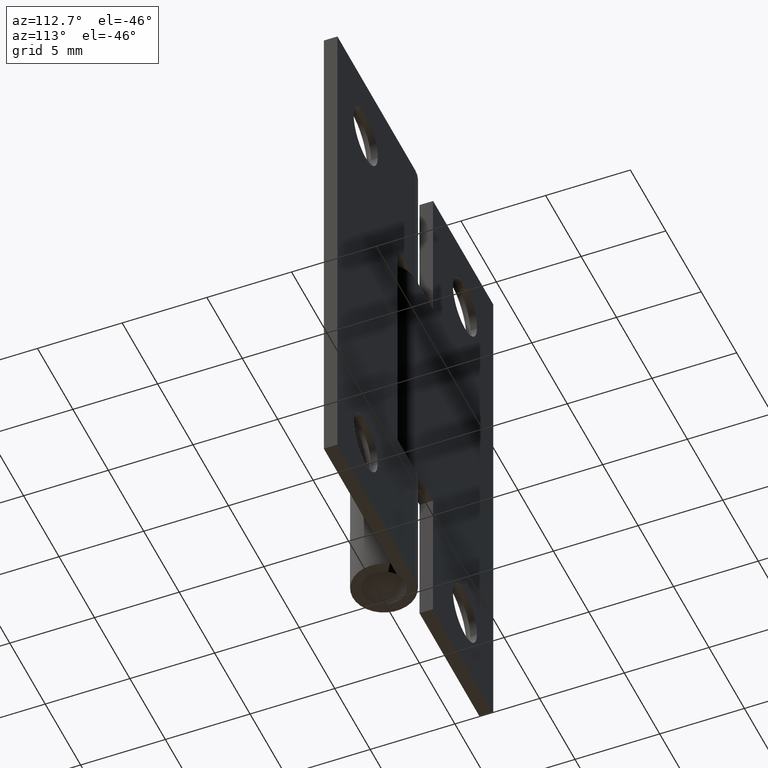
[diagram: clean part render]
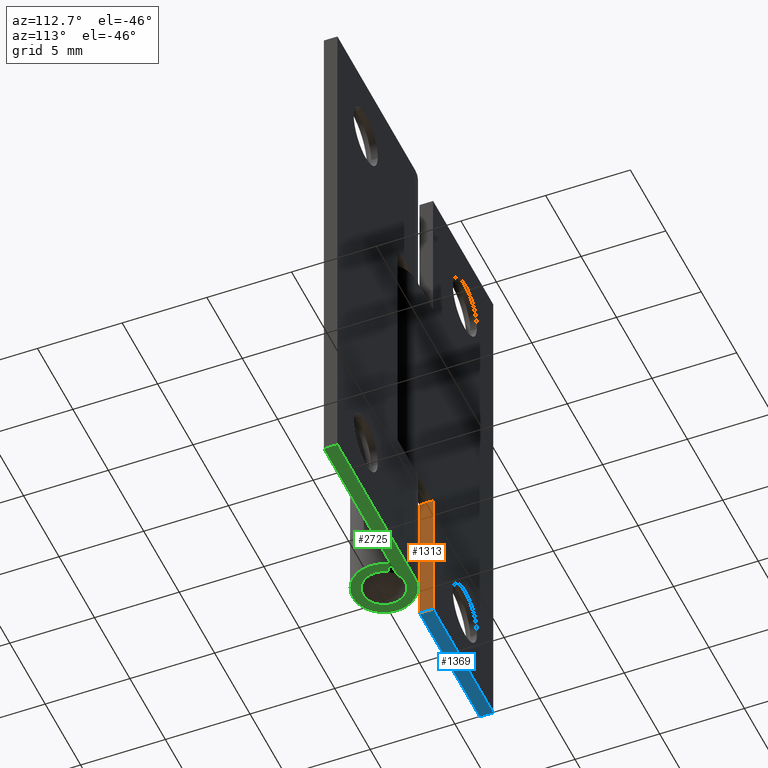
[diagram: same view with three faces highlighted in distinct colors, each labeled with its STEP entity id]
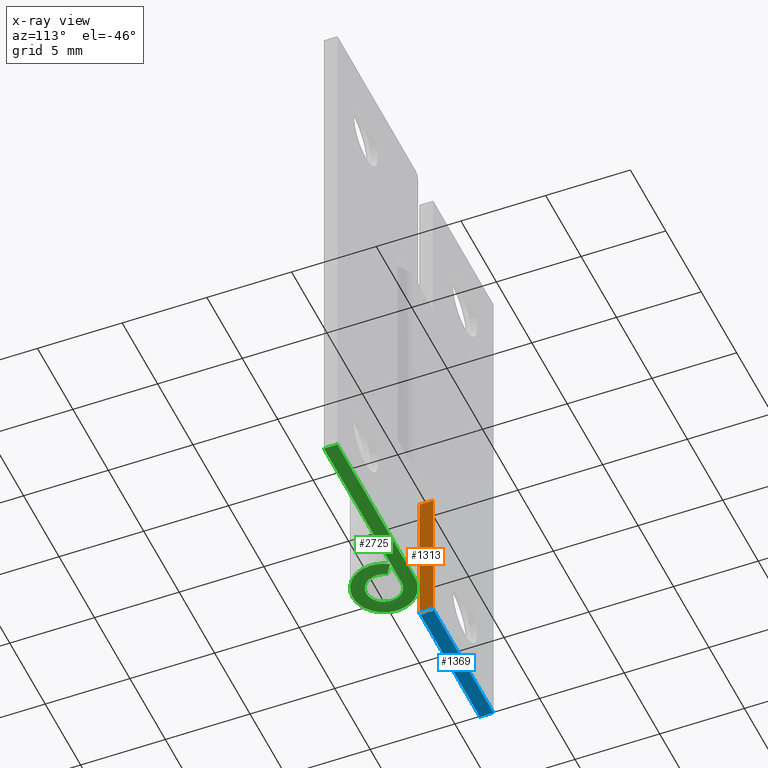
[diagram: x-ray of the same camera — body ghosted, the three highlighted faces saturated]
A machine part, auxiliary view with three faces highlighted in distinct colors.
The next image is the same camera in x-ray (body ghosted, the three faces saturated) — at least one of them is partly hidden behind the body in this view.
Their STEP definitions:

[orange] entity #1313 — the highlighted face is a freeform B-spline surface patch.
#1221=CARTESIAN_POINT('',(-2.500000000000070,1.049990999999806,8.500000000000000));
#1222=VERTEX_POINT('',#1221);
#1228=CARTESIAN_POINT('',(-2.500000000000070,1.849990999999940,8.500000000000000));
#1229=VERTEX_POINT('',#1228);
#1230=CARTESIAN_POINT('',(-2.500000000000070,1.049990999999806,8.500000000000000));
#1231=CARTESIAN_POINT('',(-2.500000000000070,1.849990999999940,8.500000000000000));
#1232=QUASI_UNIFORM_CURVE('',1,(#1230,#1231),.UNSPECIFIED.,.F.,.U.);
#1233=EDGE_CURVE('',#1222,#1229,#1232,.T.);
#1286=CARTESIAN_POINT('',(-2.499999999999960,1.010031001550354,8.924574983525353));
#1287=CARTESIAN_POINT('',(-2.499999999999960,1.010031001550354,-0.424575211513177));
#1288=CARTESIAN_POINT('',(-2.499999999999960,1.889951019907064,8.924574983525353));
#1289=CARTESIAN_POINT('',(-2.499999999999960,1.889951019907064,-0.424575211513177));
#1290=B_SPLINE_SURFACE_WITH_KNOTS('',1,1,((#1286,#1288),(#1287,#1289)),.UNSPECIFIED.,.F.,.F.,.U.,(2,2),(2,2),(0.0,9.349150195038531),(0.041708334948495,0.958291687403247),.UNSPECIFIED.);
#1291=CARTESIAN_POINT('',(-2.500000000000000,1.049990999999860,1.421085E-014));
#1292=VERTEX_POINT('',#1291);
#1293=CARTESIAN_POINT('',(-2.500000000000000,1.849990999999940,-5.684342E-014));
#1294=VERTEX_POINT('',#1293);
#1295=CARTESIAN_POINT('',(-2.500000000000000,1.049990999999860,1.421085E-014));
#1296=CARTESIAN_POINT('',(-2.500000000000000,1.849990999999940,-5.684342E-014));
#1297=QUASI_UNIFORM_CURVE('',1,(#1295,#1296),.UNSPECIFIED.,.F.,.U.);
#1298=EDGE_CURVE('',#1292,#1294,#1297,.T.);
#1299=ORIENTED_EDGE('',*,*,#1298,.T.);
#1300=CARTESIAN_POINT('',(-2.500000000000070,1.849990999999940,8.500000000000000));
#1301=CARTESIAN_POINT('',(-2.500000000000000,1.849990999999940,-5.684342E-014));
#1302=QUASI_UNIFORM_CURVE('',1,(#1300,#1301),.UNSPECIFIED.,.F.,.U.);
#1303=EDGE_CURVE('',#1229,#1294,#1302,.T.);
#1304=ORIENTED_EDGE('',*,*,#1303,.F.);
#1305=ORIENTED_EDGE('',*,*,#1233,.F.);
#1306=CARTESIAN_POINT('',(-2.500000000000000,1.049990999999860,1.421085E-014));
#1307=CARTESIAN_POINT('',(-2.500000000000070,1.049990999999806,8.500000000000000));
#1308=QUASI_UNIFORM_CURVE('',1,(#1306,#1307),.UNSPECIFIED.,.F.,.U.);
#1309=EDGE_CURVE('',#1292,#1222,#1308,.T.);
#1310=ORIENTED_EDGE('',*,*,#1309,.F.);
#1311=EDGE_LOOP('',(#1299,#1304,#1305,#1310));
#1312=FACE_OUTER_BOUND('',#1311,.T.);
#1313=ADVANCED_FACE('',(#1312),#1290,.T.);

[blue] entity #1369 — the highlighted face is a freeform B-spline surface patch.
#1291=CARTESIAN_POINT('',(-2.500000000000000,1.049990999999860,1.421085E-014));
#1292=VERTEX_POINT('',#1291);
#1293=CARTESIAN_POINT('',(-2.500000000000000,1.849990999999940,-5.684342E-014));
#1294=VERTEX_POINT('',#1293);
#1295=CARTESIAN_POINT('',(-2.500000000000000,1.049990999999860,1.421085E-014));
#1296=CARTESIAN_POINT('',(-2.500000000000000,1.849990999999940,-5.684342E-014));
#1297=QUASI_UNIFORM_CURVE('',1,(#1295,#1296),.UNSPECIFIED.,.F.,.U.);
#1298=EDGE_CURVE('',#1292,#1294,#1297,.T.);
#1319=CARTESIAN_POINT('',(-10.999999999999700,1.049990999999902,0.0));
#1320=VERTEX_POINT('',#1319);
#1321=CARTESIAN_POINT('',(-10.999999999999700,1.849990999999905,0.0));
#1322=VERTEX_POINT('',#1321);
#1323=CARTESIAN_POINT('',(-10.999999999999700,1.049990999999902,0.0));
#1324=CARTESIAN_POINT('',(-10.999999999999700,1.849990999999905,0.0));
#1325=QUASI_UNIFORM_CURVE('',1,(#1323,#1324),.UNSPECIFIED.,.F.,.U.);
#1326=EDGE_CURVE('',#1320,#1322,#1325,.T.);
#1350=CARTESIAN_POINT('',(-11.424574983525041,1.010031001550411,1.421085E-014));
#1351=CARTESIAN_POINT('',(-2.075424788486898,1.010031001550411,1.421085E-014));
#1352=CARTESIAN_POINT('',(-11.424574983525041,1.889951019907061,1.421085E-014));
#1353=CARTESIAN_POINT('',(-2.075424788486898,1.889951019907061,1.421085E-014));
#1354=B_SPLINE_SURFACE_WITH_KNOTS('',1,1,((#1350,#1352),(#1351,#1353)),.UNSPECIFIED.,.F.,.F.,.U.,(2,2),(2,2),(0.0,9.349150195038138),(0.041708334948495,0.958291687403247),.UNSPECIFIED.);
#1355=CARTESIAN_POINT('',(-10.999999999999700,1.849990999999905,0.0));
#1356=CARTESIAN_POINT('',(-2.500000000000000,1.849990999999940,-5.684342E-014));
#1357=QUASI_UNIFORM_CURVE('',1,(#1355,#1356),.UNSPECIFIED.,.F.,.U.);
#1358=EDGE_CURVE('',#1322,#1294,#1357,.T.);
#1359=ORIENTED_EDGE('',*,*,#1358,.T.);
#1360=ORIENTED_EDGE('',*,*,#1298,.F.);
#1361=CARTESIAN_POINT('',(-2.500000000000000,1.049990999999860,1.421085E-014));
#1362=CARTESIAN_POINT('',(-10.999999999999700,1.049990999999902,0.0));
#1363=QUASI_UNIFORM_CURVE('',1,(#1361,#1362),.UNSPECIFIED.,.F.,.U.);
#1364=EDGE_CURVE('',#1292,#1320,#1363,.T.);
#1365=ORIENTED_EDGE('',*,*,#1364,.T.);
#1366=ORIENTED_EDGE('',*,*,#1326,.T.);
#1367=EDGE_LOOP('',(#1359,#1360,#1365,#1366));
#1368=FACE_OUTER_BOUND('',#1367,.T.);
#1369=ADVANCED_FACE('',(#1368),#1354,.F.);

[green] entity #2725 — the highlighted face is a freeform B-spline surface patch.
#2251=CARTESIAN_POINT('',(0.883387148770542,0.567562459459366,0.0));
#2252=VERTEX_POINT('',#2251);
#2265=CARTESIAN_POINT('',(1.556444024024065,0.999990999999838,0.0));
#2266=VERTEX_POINT('',#2265);
#2272=CARTESIAN_POINT('',(0.883387148770542,0.567562459459366,0.0));
#2273=CARTESIAN_POINT('',(1.556444024024065,0.999990999999838,0.0));
#2274=QUASI_UNIFORM_CURVE('',1,(#2272,#2273),.UNSPECIFIED.,.F.,.U.);
#2275=EDGE_CURVE('',#2252,#2266,#2274,.T.);
#2430=CARTESIAN_POINT('',(0.004347403741932,1.049990999999846,0.0));
#2431=VERTEX_POINT('',#2430);
#2432=CARTESIAN_POINT('',(0.883387148770542,0.567562459459366,0.0));
#2433=CARTESIAN_POINT('',(0.930300006893449,0.494592637284461,0.0));
#2434=CARTESIAN_POINT('',(0.990104523665277,0.369774926714662,0.0));
#2435=CARTESIAN_POINT('',(1.042300415800220,0.166163962612061,0.0));
#2436=CARTESIAN_POINT('',(1.058743682294796,-0.051258068747611,0.0));
#2437=CARTESIAN_POINT('',(1.019879676656233,-0.288823216550270,0.0));
#2438=CARTESIAN_POINT('',(0.932171516053680,-0.496357803390385,0.0));
#2439=CARTESIAN_POINT('',(0.811911423184547,-0.677719113511973,0.0));
#2440=CARTESIAN_POINT('',(0.661535315614922,-0.826083471701504,0.0));
#2441=CARTESIAN_POINT('',(0.446477122072642,-0.961469386598070,0.0));
#2442=CARTESIAN_POINT('',(0.204130821164399,-1.042936982792223,0.0));
#2443=CARTESIAN_POINT('',(-0.094109809958284,-1.059586594679419,0.0));
#2444=CARTESIAN_POINT('',(-0.358088638134990,-0.999702238363231,0.0));
#2445=CARTESIAN_POINT('',(-0.570659190581701,-0.888626978010855,0.0));
#2446=CARTESIAN_POINT('',(-0.724512080327949,-0.767448470469367,0.0));
#2447=CARTESIAN_POINT('',(-0.864640441686038,-0.610288824769232,0.0));
#2448=CARTESIAN_POINT('',(-0.975115297889303,-0.413322347972577,0.0));
#2449=CARTESIAN_POINT('',(-1.050489467766488,-0.155178497215726,0.0));
#2450=CARTESIAN_POINT('',(-1.057879951474319,0.130058663118058,0.0));
#2451=CARTESIAN_POINT('',(-0.982805480960064,0.397297461580397,0.0));
#2452=CARTESIAN_POINT('',(-0.851376017545789,0.631599755049267,0.0));
#2453=CARTESIAN_POINT('',(-0.692266881276947,0.802839889874344,0.0));
#2454=CARTESIAN_POINT('',(-0.510578555546237,0.922998007439460,0.0));
#2455=CARTESIAN_POINT('',(-0.292117406292105,1.020398489699288,0.0));
#2456=CARTESIAN_POINT('',(-0.118561384367835,1.050600754381255,0.0));
#2457=CARTESIAN_POINT('',(0.004347403741932,1.049990999999846,0.0));
#2458=B_SPLINE_CURVE_WITH_KNOTS('',3,(#2432,#2433,#2434,#2435,#2436,#2437,#2438,#2439,#2440,#2441,#2442,#2443,#2444,#2445,#2446,#2447,#2448,#2449,#2450,#2451,#2452,#2453,#2454,#2455,#2456,#2457),.UNSPECIFIED.,.F.,.U.,(4,1,1,1,1,1,1,1,1,1,1,1,1,1,1,1,1,1,1,1,1,1,1,4),(0.000000061119639,0.260242128028234,0.412066724996388,0.628945672042706,0.910895908821086,1.127780879830248,1.301274465379470,1.561507005236346,1.756705914313015,2.060342644745642,2.320604501974954,2.645927882831838,2.862782575785454,3.036282916060286,3.231477438448215,3.491739295673580,3.708624962805522,4.033948343668157,4.337547926903651,4.532746835983395,4.836383566408720,5.031574481562175,5.183396486926782,5.552081891872648),.UNSPECIFIED.);
#2459=EDGE_CURVE('',#2252,#2431,#2458,.T.);
#2489=CARTESIAN_POINT('',(11.000000000000300,1.049990999999790,0.0));
#2490=VERTEX_POINT('',#2489);
#2491=CARTESIAN_POINT('',(11.000000000000300,1.049990999999790,0.0));
#2492=CARTESIAN_POINT('',(0.004347403741932,1.049990999999846,0.0));
#2493=QUASI_UNIFORM_CURVE('',1,(#2491,#2492),.UNSPECIFIED.,.F.,.U.);
#2494=EDGE_CURVE('',#2490,#2431,#2493,.T.);
#2668=CARTESIAN_POINT('',(-2.491856509921136,-2.034788217454425,-7.105427E-014));
#2669=CARTESIAN_POINT('',(11.641857773838179,-2.034788217454425,-7.105427E-014));
#2670=CARTESIAN_POINT('',(-2.491856509921136,2.034804390086187,-7.105427E-014));
#2671=CARTESIAN_POINT('',(11.641857773838179,2.034804390086187,-7.105427E-014));
#2672=B_SPLINE_SURFACE_WITH_KNOTS('',1,1,((#2668,#2670),(#2669,#2671)),.UNSPECIFIED.,.F.,.F.,.U.,(2,2),(2,2),(0.0,14.133714283759319),(0.0,4.069592607540613),.UNSPECIFIED.);
#2673=CARTESIAN_POINT('',(0.005770608245164,1.849990999999845,0.0));
#2674=VERTEX_POINT('',#2673);
#2675=CARTESIAN_POINT('',(11.000000000000300,1.849990999999790,0.0));
#2676=VERTEX_POINT('',#2675);
#2677=CARTESIAN_POINT('',(0.005770608245164,1.849990999999845,0.0));
#2678=CARTESIAN_POINT('',(11.000000000000300,1.849990999999790,0.0));
#2679=QUASI_UNIFORM_CURVE('',1,(#2677,#2678),.UNSPECIFIED.,.F.,.U.);
#2680=EDGE_CURVE('',#2674,#2676,#2679,.T.);
#2681=ORIENTED_EDGE('',*,*,#2680,.T.);
#2682=CARTESIAN_POINT('',(11.000000000000300,1.849990999999790,0.0));
#2683=CARTESIAN_POINT('',(11.000000000000300,1.049990999999790,0.0));
#2684=QUASI_UNIFORM_CURVE('',1,(#2682,#2683),.UNSPECIFIED.,.F.,.U.);
#2685=EDGE_CURVE('',#2676,#2490,#2684,.T.);
#2686=ORIENTED_EDGE('',*,*,#2685,.T.);
#2687=ORIENTED_EDGE('',*,*,#2494,.T.);
#2688=ORIENTED_EDGE('',*,*,#2459,.F.);
#2689=ORIENTED_EDGE('',*,*,#2275,.T.);
#2690=CARTESIAN_POINT('',(1.556444024024065,0.999990999999838,0.0));
#2691=CARTESIAN_POINT('',(1.649432145170698,0.855384177453729,0.0));
#2692=CARTESIAN_POINT('',(1.786517866100940,0.557524582566119,0.0));
#2693=CARTESIAN_POINT('',(1.857508748669070,0.140042800198207,0.0));
#2694=CARTESIAN_POINT('',(1.846726641520176,-0.185495457685269,0.0));
#2695=CARTESIAN_POINT('',(1.799687911605523,-0.455752450492462,0.0));
#2696=CARTESIAN_POINT('',(1.722036614441438,-0.692519837416046,0.0));
#2697=CARTESIAN_POINT('',(1.595575289351028,-0.950149757261972,0.0));
#2698=CARTESIAN_POINT('',(1.395275884085461,-1.239265912392239,0.0));
#2699=CARTESIAN_POINT('',(1.081467390600051,-1.524445484317677,0.0));
#2700=CARTESIAN_POINT('',(0.702560931915767,-1.726409351578496,0.0));
#2701=CARTESIAN_POINT('',(0.308820932272842,-1.838850572029056,0.0));
#2702=CARTESIAN_POINT('',(-0.062389195836767,-1.861634631175223,0.0));
#2703=CARTESIAN_POINT('',(-0.435666252289857,-1.809006258568029,0.0));
#2704=CARTESIAN_POINT('',(-0.763138054399687,-1.698340386659315,0.0));
#2705=CARTESIAN_POINT('',(-1.067992095208021,-1.522940711967985,0.0));
#2706=CARTESIAN_POINT('',(-1.350894978722720,-1.283347618611594,0.0));
#2707=CARTESIAN_POINT('',(-1.583301859836598,-0.984828079963957,0.0));
#2708=CARTESIAN_POINT('',(-1.759453000459257,-0.615168088101842,0.0));
#2709=CARTESIAN_POINT('',(-1.849726799477353,-0.234815493564759,0.0));
#2710=CARTESIAN_POINT('',(-1.856038024282351,0.155616293250101,0.0));
#2711=CARTESIAN_POINT('',(-1.791244824377499,0.501486081551339,0.0));
#2712=CARTESIAN_POINT('',(-1.667817474923298,0.823656401808403,0.0));
#2713=CARTESIAN_POINT('',(-1.471659044060128,1.146176823834086,0.0));
#2714=CARTESIAN_POINT('',(-1.199598999631120,1.427555712169679,0.0));
#2715=CARTESIAN_POINT('',(-0.901098101409519,1.625409231821283,0.0));
#2716=CARTESIAN_POINT('',(-0.603836992997785,1.758241754951628,0.0));
#2717=CARTESIAN_POINT('',(-0.306273940322861,1.834176473556484,0.0));
#2718=CARTESIAN_POINT('',(-0.089732321705838,1.850291329955950,0.0));
#2719=CARTESIAN_POINT('',(0.005770608245164,1.849990999999845,0.0));
#2720=B_SPLINE_CURVE_WITH_KNOTS('',3,(#2690,#2691,#2692,#2693,#2694,#2695,#2696,#2697,#2698,#2699,#2700,#2701,#2702,#2703,#2704,#2705,#2706,#2707,#2708,#2709,#2710,#2711,#2712,#2713,#2714,#2715,#2716,#2717,#2718,#2719),.UNSPECIFIED.,.F.,.U.,(4,1,1,1,1,1,1,1,1,1,1,1,1,1,1,1,1,1,1,1,1,1,1,1,1,1,1,4),(0.000000168962334,0.515752112177038,0.974202137048966,1.260732879795119,1.489961094213413,1.795590328208170,2.005723672460754,2.349558437254700,2.846196756086048,3.266439402286368,3.629379159947582,4.068732991088337,4.374361380005312,4.756415135292892,5.100231773599987,5.424953510556456,5.864310878694266,6.227250065626236,6.647499390839448,7.029539577294827,7.392466180217404,7.698099247930522,8.061031944885713,8.519487977676052,8.863328568268237,9.130753838734901,9.493707129395295,9.780219996222133),.UNSPECIFIED.);
#2721=EDGE_CURVE('',#2266,#2674,#2720,.T.);
#2722=ORIENTED_EDGE('',*,*,#2721,.T.);
#2723=EDGE_LOOP('',(#2681,#2686,#2687,#2688,#2689,#2722));
#2724=FACE_OUTER_BOUND('',#2723,.T.);
#2725=ADVANCED_FACE('',(#2724),#2672,.F.);